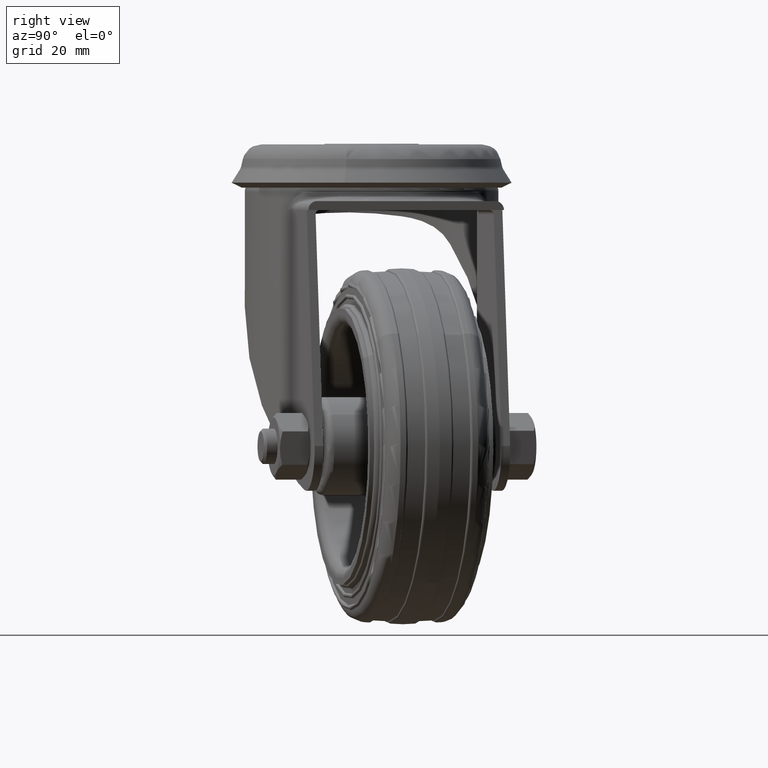
[diagram: clean part render]
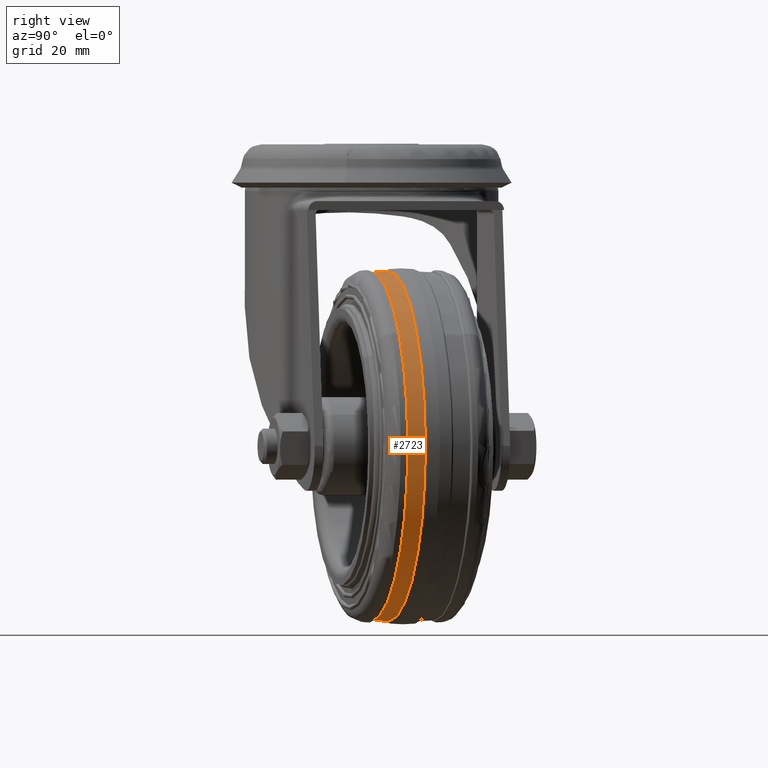
[diagram: same view with one face highlighted and labeled with its STEP entity id]
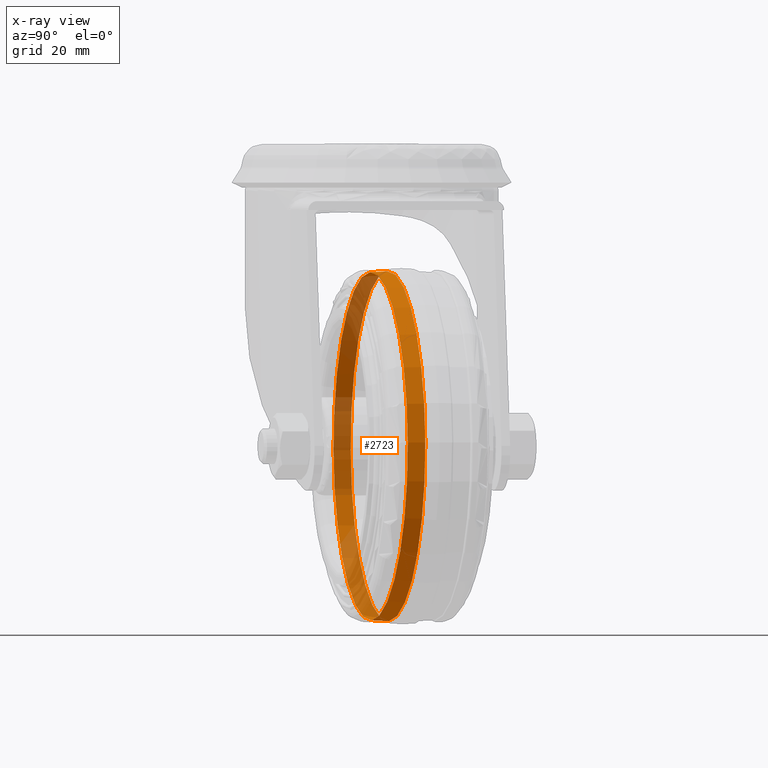
[diagram: x-ray of the same camera — body ghosted, the highlighted face saturated]
A machine part, right view. The second image highlights one B-rep face of the part: STEP entity #2723.
The next image is the same camera in x-ray: the body ghosted, the highlighted face saturated — about 37% of this face is hidden behind the body in this view.
In plain terms, the highlighted conical surface has half-angle 3 deg.
Its self-contained STEP definition (entity closure, byte-faithful):
#478=CONICAL_SURFACE('',#3060,39.3305933748331,0.052359877559813);
#542=FACE_BOUND('',#948,.T.);
#694=FACE_OUTER_BOUND('',#947,.T.);
#947=EDGE_LOOP('',(#2283));
#948=EDGE_LOOP('',(#2284));
#1155=CIRCLE('',#3005,39.1212495498614);
#1158=CIRCLE('',#3010,39.3305933748331);
#1374=VERTEX_POINT('',#9894);
#1377=VERTEX_POINT('',#9902);
#1684=EDGE_CURVE('',#1374,#1374,#1155,.T.);
#1687=EDGE_CURVE('',#1377,#1377,#1158,.T.);
#2283=ORIENTED_EDGE('',*,*,#1684,.F.);
#2284=ORIENTED_EDGE('',*,*,#1687,.T.);
#2723=ADVANCED_FACE('',(#694,#542),#478,.T.);
#3005=AXIS2_PLACEMENT_3D('',#9895,#3617,#3618);
#3010=AXIS2_PLACEMENT_3D('',#9903,#3627,#3628);
#3060=AXIS2_PLACEMENT_3D('',#10065,#3727,#3728);
#3617=DIRECTION('center_axis',(-1.,0.,0.));
#3618=DIRECTION('ref_axis',(0.,0.,1.));
#3627=DIRECTION('center_axis',(-1.,0.,0.));
#3628=DIRECTION('ref_axis',(0.,0.,-1.));
#3727=DIRECTION('center_axis',(1.,-5.51327645709644E-18,0.));
#3728=DIRECTION('ref_axis',(5.51327645709644E-18,1.,0.));
#9894=CARTESIAN_POINT('',(-7.21389614884919,39.1212495498614,0.));
#9895=CARTESIAN_POINT('Origin',(-7.21389614884919,0.,0.));
#9902=CARTESIAN_POINT('',(-3.21937800983085,39.3305933748331,0.));
#9903=CARTESIAN_POINT('Origin',(-3.21937800983085,0.,0.));
#10065=CARTESIAN_POINT('Origin',(-3.21937800983085,0.,0.));